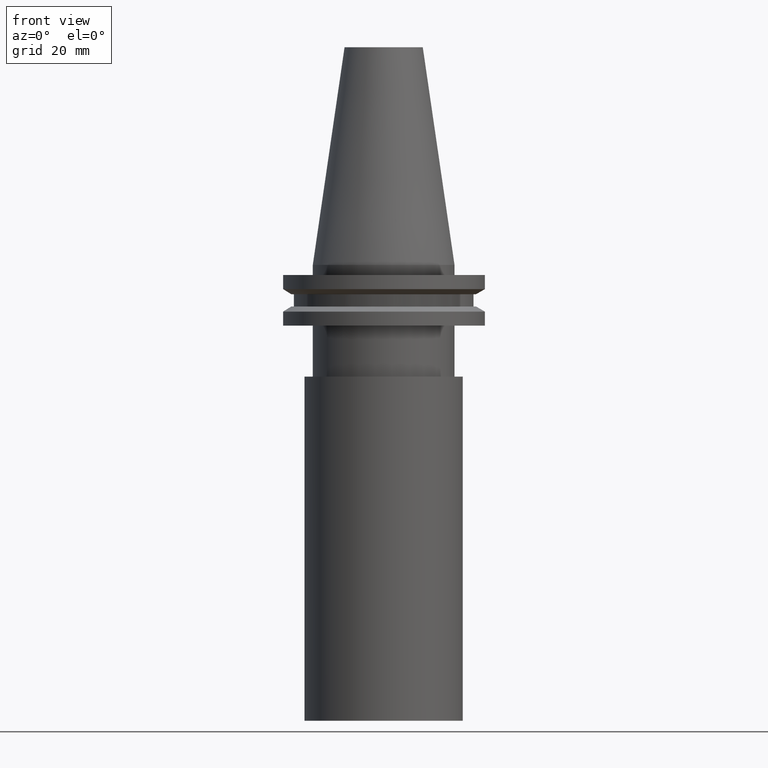
[diagram: clean part render]
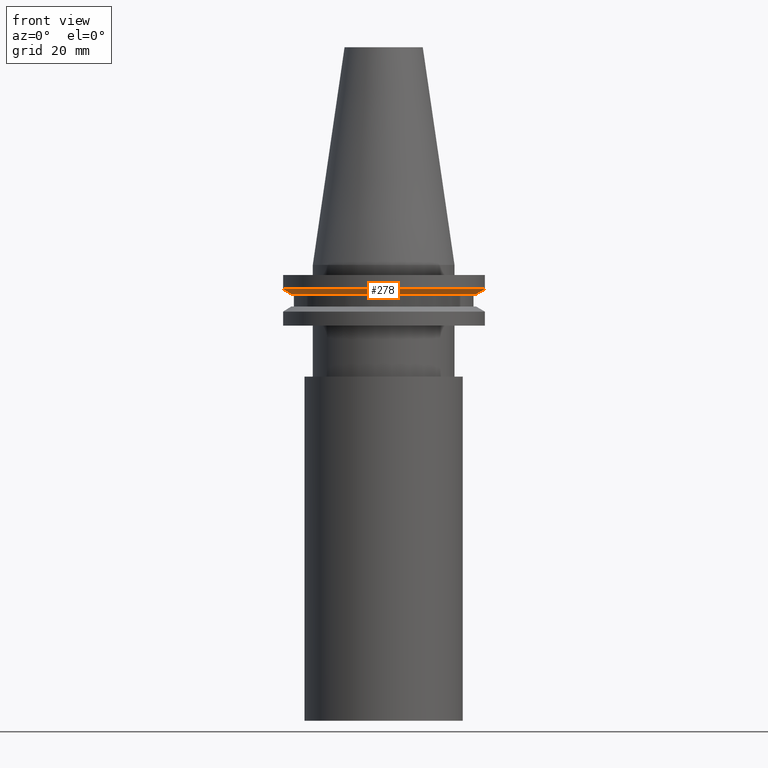
[diagram: same view with one face highlighted and labeled with its STEP entity id]
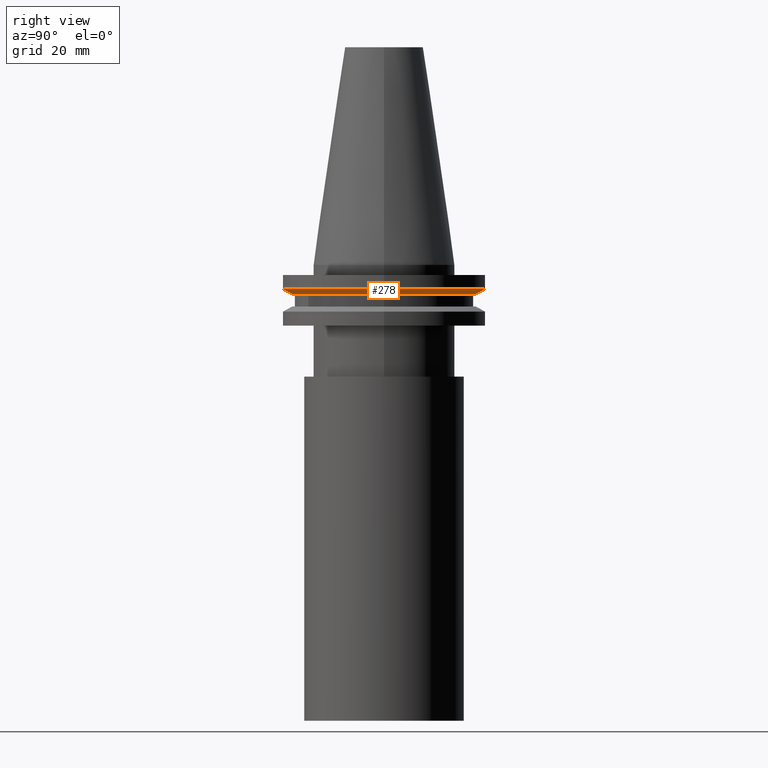
[diagram: same view with one face highlighted and labeled with its STEP entity id]
A machine part, front view. The second image highlights one B-rep face of the part: STEP entity #278.
A second angle (right view) of the same face is appended — the face is thin or edge-on in the first view.
In plain terms, the highlighted conical surface has half-angle 60 deg.
Its self-contained STEP definition (entity closure, byte-faithful):
#14 = ORIENTED_EDGE ( 'NONE', *, *, #328, .F. ) ;
#20 = CARTESIAN_POINT ( 'NONE',  ( 0.000000000000000000, 0.000000000000000000, -9.205000000000005400 ) ) ;
#30 = VERTEX_POINT ( 'NONE', #353 ) ;
#40 = AXIS2_PLACEMENT_3D ( 'NONE', #20, #103, #47 ) ;
#41 = CONICAL_SURFACE ( 'NONE', #40, 28.97919780457007732, 1.047197551196598297 ) ;
#47 = DIRECTION ( 'NONE',  ( 1.000000000000000000, 0.000000000000000000, 0.000000000000000000 ) ) ;
#52 = CARTESIAN_POINT ( 'NONE',  ( 0.000000000000000000, 0.000000000000000000, -9.205000000000005400 ) ) ;
#57 = AXIS2_PLACEMENT_3D ( 'NONE', #197, #205, #227 ) ;
#78 = FACE_BOUND ( 'NONE', #109, .T. ) ;
#89 = EDGE_CURVE ( 'NONE', #30, #30, #115, .T. ) ;
#103 = DIRECTION ( 'NONE',  ( -0.000000000000000000, -0.000000000000000000, 1.000000000000000000 ) ) ;
#109 = EDGE_LOOP ( 'NONE', ( #317 ) ) ;
#115 = CIRCLE ( 'NONE', #187, 28.97919780457007732 ) ;
#187 = AXIS2_PLACEMENT_3D ( 'NONE', #52, #268, #393 ) ;
#197 = CARTESIAN_POINT ( 'NONE',  ( 0.000000000000000000, 0.000000000000000000, -7.605276606597335842 ) ) ;
#205 = DIRECTION ( 'NONE',  ( -0.000000000000000000, -0.000000000000000000, 1.000000000000000000 ) ) ;
#227 = DIRECTION ( 'NONE',  ( 1.000000000000000000, 0.000000000000000000, 0.000000000000000000 ) ) ;
#262 = CIRCLE ( 'NONE', #57, 31.75000000000000000 ) ;
#267 = VERTEX_POINT ( 'NONE', #302 ) ;
#268 = DIRECTION ( 'NONE',  ( -0.000000000000000000, -0.000000000000000000, 1.000000000000000000 ) ) ;
#278 = ADVANCED_FACE ( 'NONE', ( #319, #78 ), #41, .T. ) ;
#302 = CARTESIAN_POINT ( 'NONE',  ( 31.75000000000000000, 0.000000000000000000, -7.605276606597335842 ) ) ;
#317 = ORIENTED_EDGE ( 'NONE', *, *, #89, .T. ) ;
#319 = FACE_OUTER_BOUND ( 'NONE', #342, .T. ) ;
#328 = EDGE_CURVE ( 'NONE', #267, #267, #262, .T. ) ;
#342 = EDGE_LOOP ( 'NONE', ( #14 ) ) ;
#353 = CARTESIAN_POINT ( 'NONE',  ( 28.97919780457007732, 0.000000000000000000, -9.205000000000005400 ) ) ;
#393 = DIRECTION ( 'NONE',  ( 1.000000000000000000, 0.000000000000000000, 0.000000000000000000 ) ) ;